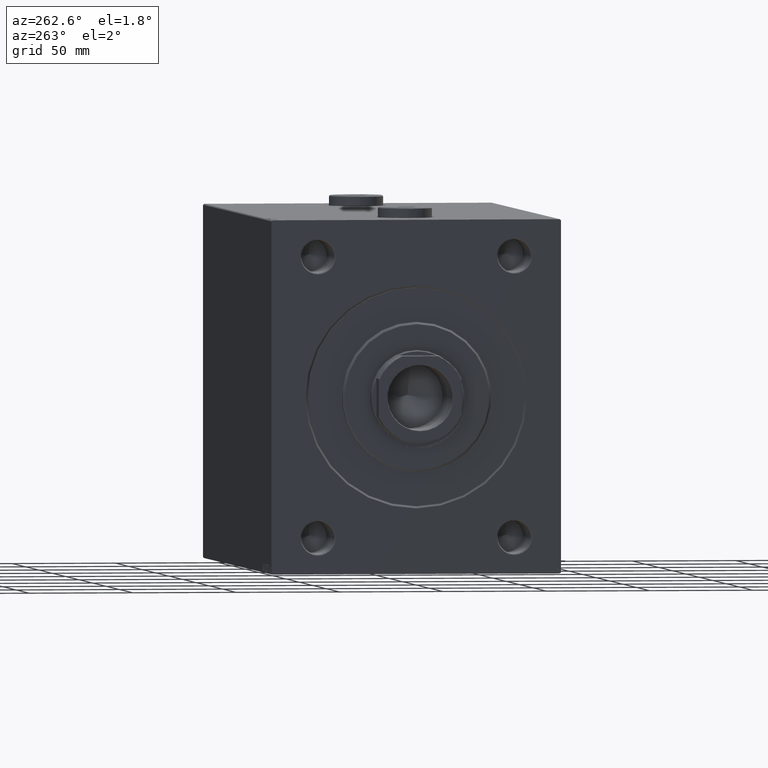
[diagram: clean part render]
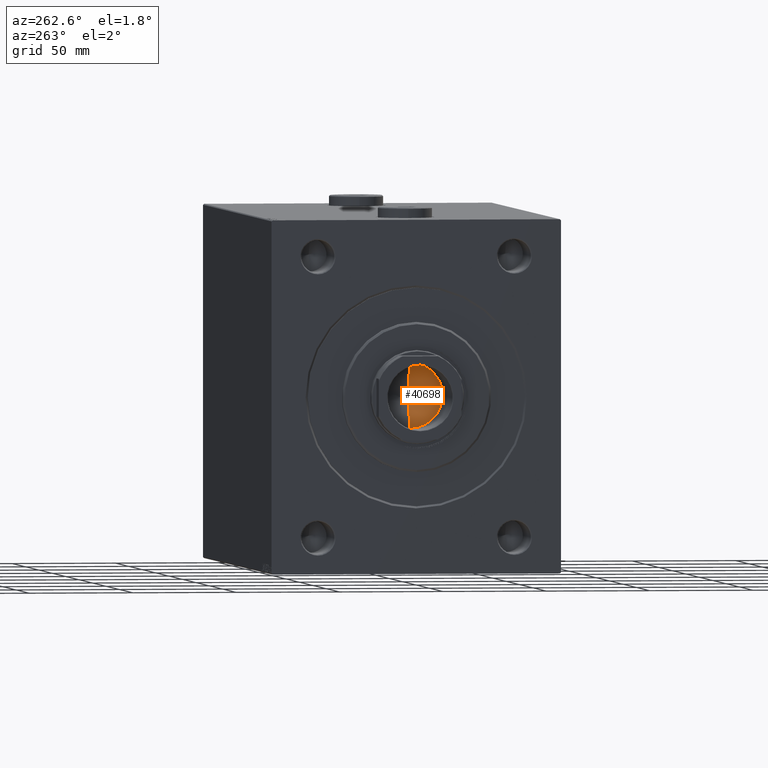
[diagram: same view with one face highlighted and labeled with its STEP entity id]
A machine part, auxiliary view. The second image highlights one B-rep face of the part: STEP entity #40698.
In plain terms, the highlighted conical surface has half-angle 59 deg.
Its self-contained STEP definition (entity closure, byte-faithful):
#351 = CARTESIAN_POINT ( 'NONE',  ( -15.74999999999999289, 1.928818708657080556E-15, 206.0000000000000284 ) ) ;
#652 = AXIS2_PLACEMENT_3D ( 'NONE', #21870, #43579, #26238 ) ;
#1002 = VERTEX_POINT ( 'NONE', #19864 ) ;
#7771 = FACE_OUTER_BOUND ( 'NONE', #20587, .T. ) ;
#12164 = ORIENTED_EDGE ( 'NONE', *, *, #17540, .T. ) ;
#12630 = LINE ( 'NONE', #35804, #13343 ) ;
#13343 = VECTOR ( 'NONE', #15236, 1000.000000000000000 ) ;
#15236 = DIRECTION ( 'NONE',  ( -0.8571673007021120005, 1.049727191138618326E-16, 0.5150380749100547106 ) ) ;
#15675 = CARTESIAN_POINT ( 'NONE',  ( 0.000000000000000000, 0.000000000000000000, 206.0000000000000284 ) ) ;
#17540 = EDGE_CURVE ( 'NONE', #28706, #38273, #12630, .T. ) ;
#19864 = CARTESIAN_POINT ( 'NONE',  ( 15.74999999999999289, 0.000000000000000000, 206.0000000000000284 ) ) ;
#20587 = EDGE_LOOP ( 'NONE', ( #45472, #12164, #34230 ) ) ;
#21870 = CARTESIAN_POINT ( 'NONE',  ( 0.000000000000000000, 0.000000000000000000, 206.0000000000000284 ) ) ;
#23512 = DIRECTION ( 'NONE',  ( -0.000000000000000000, -0.000000000000000000, 1.000000000000000000 ) ) ;
#24687 = LINE ( 'NONE', #38780, #25804 ) ;
#25804 = VECTOR ( 'NONE', #40136, 1000.000000000000000 ) ;
#26238 = DIRECTION ( 'NONE',  ( 1.000000000000000000, 0.000000000000000000, 0.000000000000000000 ) ) ;
#27906 = CARTESIAN_POINT ( 'NONE',  ( -1.199718644317817648E-14, 0.000000000000000000, 196.5364452503159498 ) ) ;
#28706 = VERTEX_POINT ( 'NONE', #27906 ) ;
#34230 = ORIENTED_EDGE ( 'NONE', *, *, #43078, .T. ) ;
#35804 = CARTESIAN_POINT ( 'NONE',  ( -15.74999999999999289, 1.928818708657080556E-15, 206.0000000000000284 ) ) ;
#37613 = DIRECTION ( 'NONE',  ( 1.000000000000000000, 0.000000000000000000, 0.000000000000000000 ) ) ;
#38273 = VERTEX_POINT ( 'NONE', #351 ) ;
#38780 = CARTESIAN_POINT ( 'NONE',  ( 15.74999999999999289, 0.000000000000000000, 206.0000000000000284 ) ) ;
#39042 = CONICAL_SURFACE ( 'NONE', #652, 15.74999999999999289, 1.029744258676653867 ) ;
#40136 = DIRECTION ( 'NONE',  ( 0.8571673007021120005, 0.000000000000000000, 0.5150380749100547106 ) ) ;
#40583 = AXIS2_PLACEMENT_3D ( 'NONE', #15675, #23512, #37613 ) ;
#40698 = ADVANCED_FACE ( 'NONE', ( #7771 ), #39042, .F. ) ;
#42413 = EDGE_CURVE ( 'NONE', #28706, #1002, #24687, .T. ) ;
#43078 = EDGE_CURVE ( 'NONE', #38273, #1002, #45752, .T. ) ;
#43579 = DIRECTION ( 'NONE',  ( -0.000000000000000000, -0.000000000000000000, 1.000000000000000000 ) ) ;
#45472 = ORIENTED_EDGE ( 'NONE', *, *, #42413, .F. ) ;
#45752 = CIRCLE ( 'NONE', #40583, 15.74999999999999289 ) ;